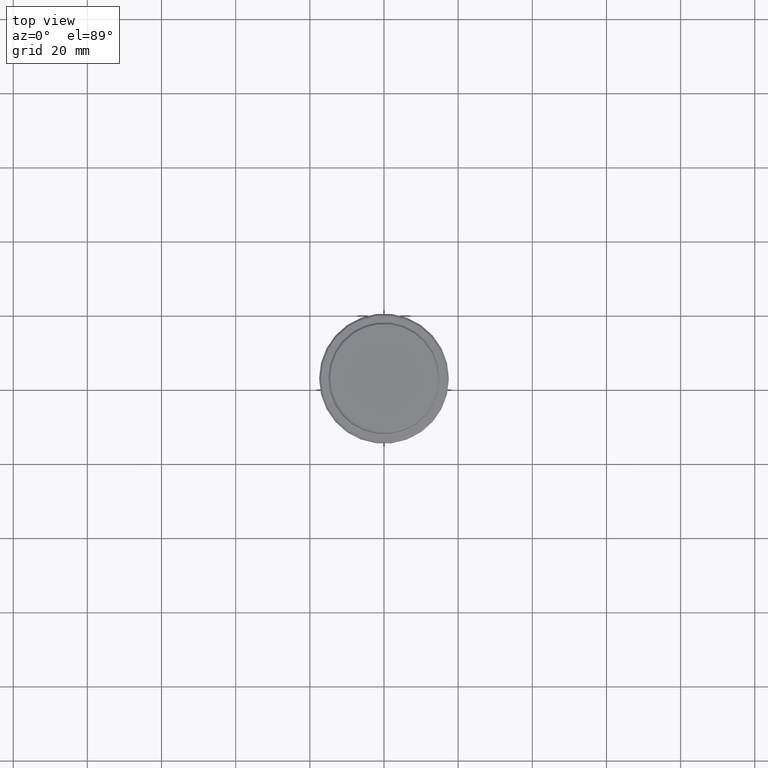
[diagram: clean part render]
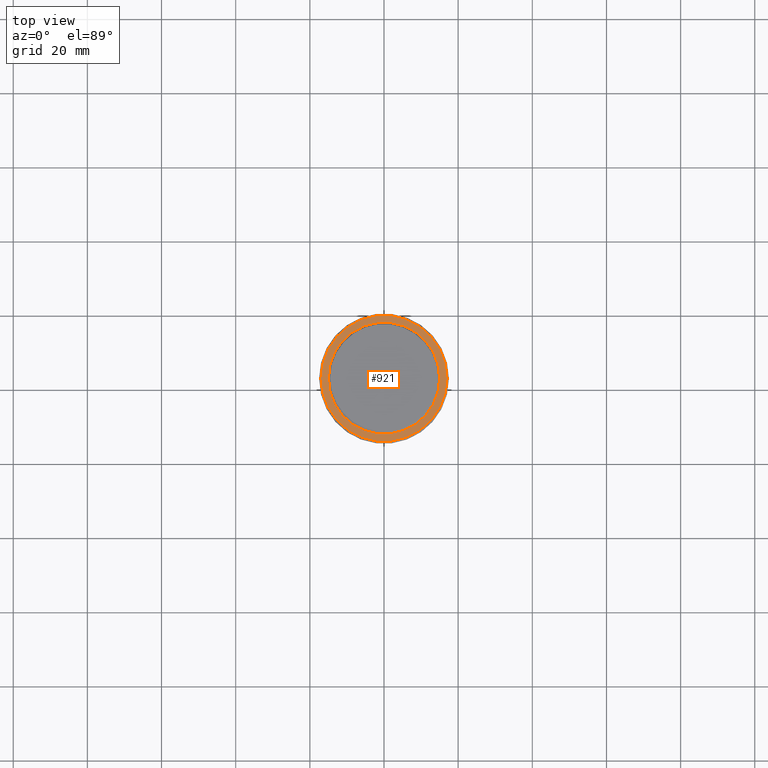
[diagram: same view with one face highlighted and labeled with its STEP entity id]
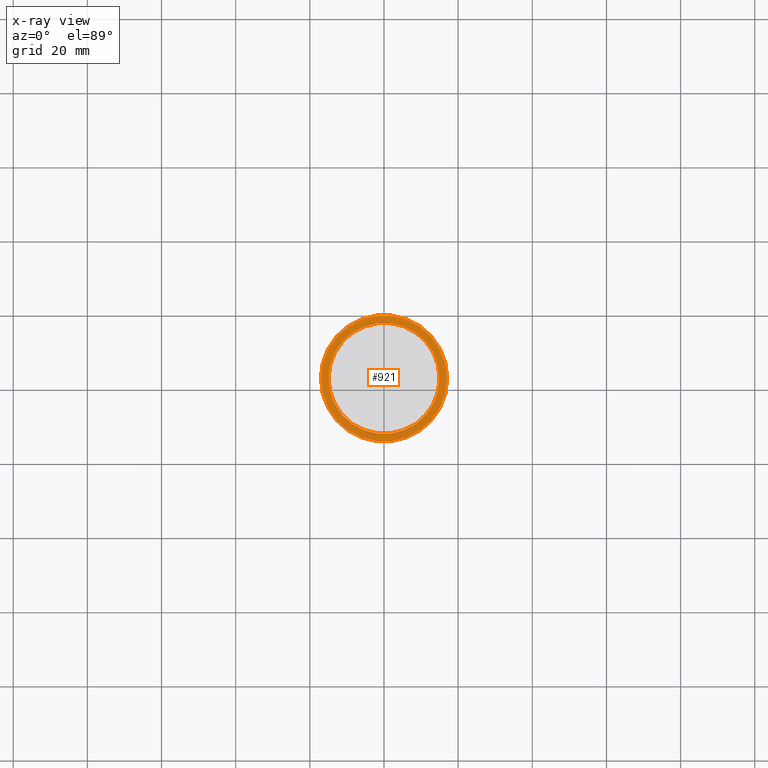
[diagram: x-ray of the same camera — body ghosted, the highlighted face saturated]
A machine part, top view. The second image highlights one B-rep face of the part: STEP entity #921.
The next image is the same camera in x-ray: the body ghosted, the highlighted face saturated — about 0% of this face is hidden behind the body in this view.
In plain terms, the highlighted planar face has unit normal (0, -0, 1).
Its self-contained STEP definition (entity closure, byte-faithful):
#43 = EDGE_CURVE ( 'NONE', #121, #450, #351, .T. ) ;
#93 = DIRECTION ( 'NONE',  ( -0.000000000000000000, -0.000000000000000000, 1.000000000000000000 ) ) ;
#103 = AXIS2_PLACEMENT_3D ( 'NONE', #977, #1204, #237 ) ;
#121 = VERTEX_POINT ( 'NONE', #453 ) ;
#170 = CIRCLE ( 'NONE', #901, 16.99999999999998579 ) ;
#199 = DIRECTION ( 'NONE',  ( 1.000000000000000000, 0.000000000000000000, 0.000000000000000000 ) ) ;
#208 = FACE_OUTER_BOUND ( 'NONE', #438, .T. ) ;
#227 = FACE_BOUND ( 'NONE', #257, .T. ) ;
#234 = CARTESIAN_POINT ( 'NONE',  ( 0.000000000000000000, 14.49999999999999467, -9.000000000000001776 ) ) ;
#237 = DIRECTION ( 'NONE',  ( 1.000000000000000000, 0.000000000000000000, 0.000000000000000000 ) ) ;
#257 = EDGE_LOOP ( 'NONE', ( #362, #575 ) ) ;
#281 = AXIS2_PLACEMENT_3D ( 'NONE', #1367, #1064, #951 ) ;
#351 = CIRCLE ( 'NONE', #281, 16.99999999999998579 ) ;
#362 = ORIENTED_EDGE ( 'NONE', *, *, #1134, .T. ) ;
#438 = EDGE_LOOP ( 'NONE', ( #1002, #699 ) ) ;
#440 = CARTESIAN_POINT ( 'NONE',  ( -14.99999999999999467, 1.836970198721029194E-15, -9.000000000000001776 ) ) ;
#450 = VERTEX_POINT ( 'NONE', #1159 ) ;
#453 = CARTESIAN_POINT ( 'NONE',  ( -16.99999999999998579, 0.000000000000000000, -9.000000000000001776 ) ) ;
#575 = ORIENTED_EDGE ( 'NONE', *, *, #1322, .T. ) ;
#604 = DIRECTION ( 'NONE',  ( 0.000000000000000000, 0.000000000000000000, -1.000000000000000000 ) ) ;
#661 = PLANE ( 'NONE',  #834 ) ;
#699 = ORIENTED_EDGE ( 'NONE', *, *, #800, .T. ) ;
#721 = CIRCLE ( 'NONE', #103, 14.99999999999999467 ) ;
#722 = CARTESIAN_POINT ( 'NONE',  ( 0.000000000000000000, 0.000000000000000000, -9.000000000000001776 ) ) ;
#745 = AXIS2_PLACEMENT_3D ( 'NONE', #722, #604, #199 ) ;
#800 = EDGE_CURVE ( 'NONE', #450, #121, #170, .T. ) ;
#834 = AXIS2_PLACEMENT_3D ( 'NONE', #234, #1093, #1101 ) ;
#883 = VERTEX_POINT ( 'NONE', #440 ) ;
#901 = AXIS2_PLACEMENT_3D ( 'NONE', #984, #93, #1314 ) ;
#921 = ADVANCED_FACE ( 'NONE', ( #208, #227 ), #661, .T. ) ;
#951 = DIRECTION ( 'NONE',  ( 1.000000000000000000, 0.000000000000000000, 0.000000000000000000 ) ) ;
#977 = CARTESIAN_POINT ( 'NONE',  ( 0.000000000000000000, 0.000000000000000000, -9.000000000000001776 ) ) ;
#984 = CARTESIAN_POINT ( 'NONE',  ( 0.000000000000000000, 0.000000000000000000, -9.000000000000001776 ) ) ;
#1002 = ORIENTED_EDGE ( 'NONE', *, *, #43, .T. ) ;
#1064 = DIRECTION ( 'NONE',  ( -0.000000000000000000, -0.000000000000000000, 1.000000000000000000 ) ) ;
#1093 = DIRECTION ( 'NONE',  ( 0.000000000000000000, -0.000000000000000000, 1.000000000000000000 ) ) ;
#1101 = DIRECTION ( 'NONE',  ( 1.000000000000000000, 0.000000000000000000, 0.000000000000000000 ) ) ;
#1110 = VERTEX_POINT ( 'NONE', #1162 ) ;
#1134 = EDGE_CURVE ( 'NONE', #1110, #883, #1261, .T. ) ;
#1159 = CARTESIAN_POINT ( 'NONE',  ( 16.99999999999998579, 2.112515728529183278E-15, -9.000000000000001776 ) ) ;
#1162 = CARTESIAN_POINT ( 'NONE',  ( 14.99999999999999467, 0.000000000000000000, -9.000000000000001776 ) ) ;
#1204 = DIRECTION ( 'NONE',  ( 0.000000000000000000, 0.000000000000000000, -1.000000000000000000 ) ) ;
#1261 = CIRCLE ( 'NONE', #745, 14.99999999999999467 ) ;
#1314 = DIRECTION ( 'NONE',  ( 1.000000000000000000, 0.000000000000000000, 0.000000000000000000 ) ) ;
#1322 = EDGE_CURVE ( 'NONE', #883, #1110, #721, .T. ) ;
#1367 = CARTESIAN_POINT ( 'NONE',  ( 0.000000000000000000, 0.000000000000000000, -9.000000000000001776 ) ) ;